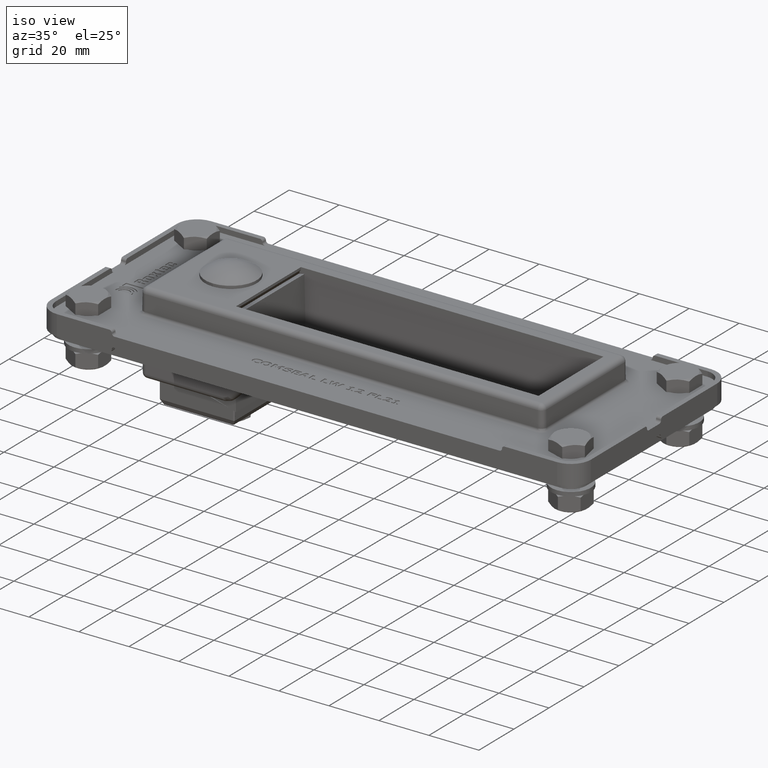
[diagram: clean part render]
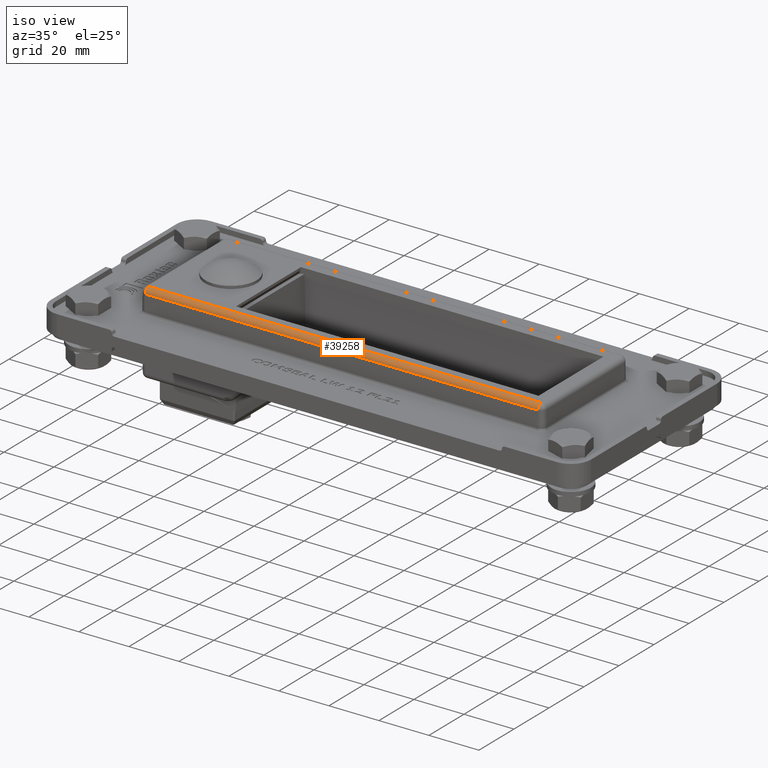
[diagram: same view with one face highlighted and labeled with its STEP entity id]
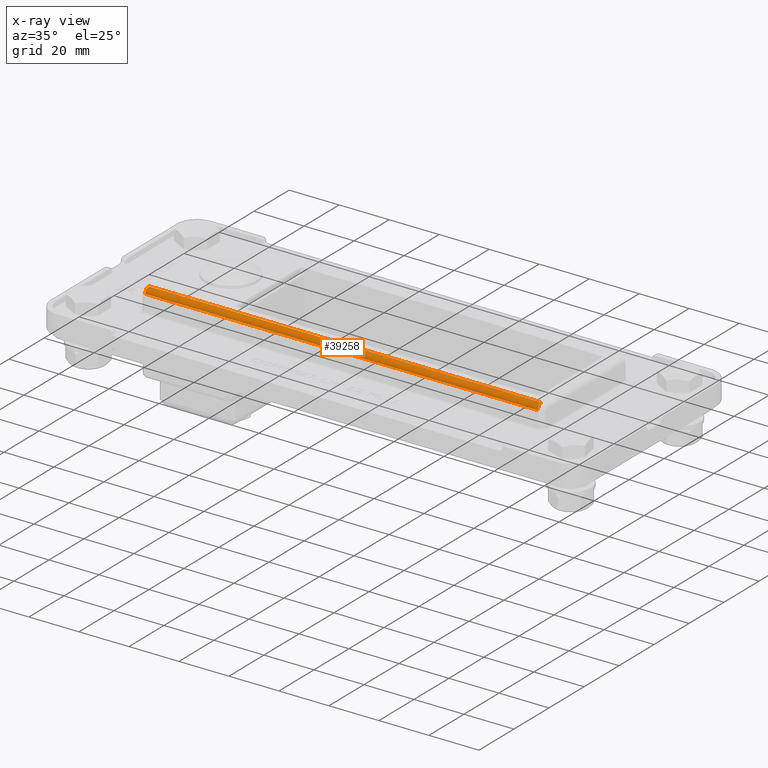
[diagram: x-ray of the same camera — body ghosted, the highlighted face saturated]
A machine part, iso view. The second image highlights one B-rep face of the part: STEP entity #39258.
The next image is the same camera in x-ray: the body ghosted, the highlighted face saturated — about 0% of this face is hidden behind the body in this view.
In plain terms, the highlighted cylindrical surface (edge-blend (fillet) strip) has radius 2 mm, axis along (-1, -0, -0).
Its self-contained STEP definition (entity closure, byte-faithful):
#38048=CARTESIAN_POINT('',(-108.51737757881004,-24.267301424938363,21.017453070996744));
#38049=VERTEX_POINT('',#38048);
#38073=CARTESIAN_POINT('',(48.517377578810049,-24.267301424938363,21.017453070996744));
#38074=VERTEX_POINT('',#38073);
#38081=CARTESIAN_POINT('',(-108.51737757881003,-24.267301424938363,21.017453070996744));
#38082=DIRECTION('',(1.0,0.0,0.0));
#38083=VECTOR('',#38082,157.03475515762008);
#38084=LINE('',#38081,#38083);
#38085=EDGE_CURVE('',#38049,#38074,#38084,.T.);
#38585=CARTESIAN_POINT('',(48.517377578810056,-22.26737757881002,23.0));
#38586=VERTEX_POINT('',#38585);
#38594=CARTESIAN_POINT('',(48.517377578810056,-22.26737757881002,20.999999999999996));
#38595=DIRECTION('',(1.0,0.0,0.0));
#38596=DIRECTION('',(0.0,-0.70401472445597,0.710185375623284));
#38597=AXIS2_PLACEMENT_3D('',#38594,#38595,#38596);
#38598=CIRCLE('',#38597,2.000000000000001);
#38599=EDGE_CURVE('',#38586,#38074,#38598,.T.);
#38627=CARTESIAN_POINT('',(-108.51737757881004,-22.26737757881002,23.0));
#38628=VERTEX_POINT('',#38627);
#38629=CARTESIAN_POINT('',(-108.51737757881004,-22.26737757881002,20.999999999999996));
#38630=DIRECTION('',(-1.0,0.0,0.0));
#38631=DIRECTION('',(0.0,-0.70401472445597,0.710185375623284));
#38632=AXIS2_PLACEMENT_3D('',#38629,#38630,#38631);
#38633=CIRCLE('',#38632,2.000000000000001);
#38634=EDGE_CURVE('',#38049,#38628,#38633,.T.);
#39242=CARTESIAN_POINT('',(10.250000000000007,-22.26737757881002,20.999999999999996));
#39243=DIRECTION('',(-1.0,-3.012630E-034,-3.452133E-032));
#39244=DIRECTION('',(0.0,-0.70401472445597,0.710185375623284));
#39245=AXIS2_PLACEMENT_3D('',#39242,#39243,#39244);
#39246=CYLINDRICAL_SURFACE('',#39245,2.0);
#39247=ORIENTED_EDGE('',*,*,#38599,.F.);
#39248=CARTESIAN_POINT('',(48.517377578810056,-22.26737757881002,23.0));
#39249=DIRECTION('',(-1.0,0.0,0.0));
#39250=VECTOR('',#39249,157.03475515762008);
#39251=LINE('',#39248,#39250);
#39252=EDGE_CURVE('',#38586,#38628,#39251,.T.);
#39253=ORIENTED_EDGE('',*,*,#39252,.T.);
#39254=ORIENTED_EDGE('',*,*,#38634,.F.);
#39255=ORIENTED_EDGE('',*,*,#38085,.T.);
#39256=EDGE_LOOP('',(#39247,#39253,#39254,#39255));
#39257=FACE_OUTER_BOUND('',#39256,.T.);
#39258=ADVANCED_FACE('',(#39257),#39246,.T.);